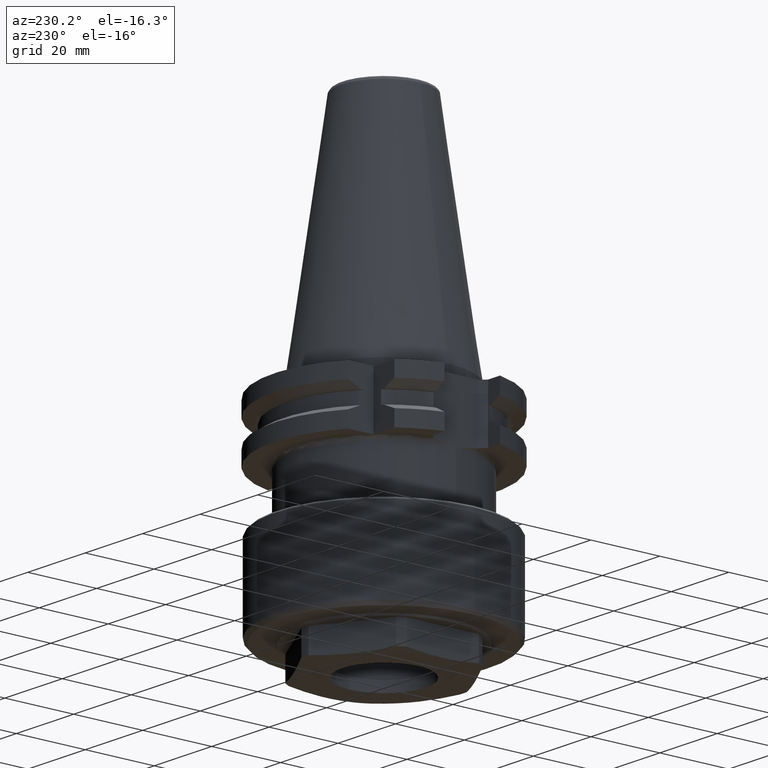
[diagram: clean part render]
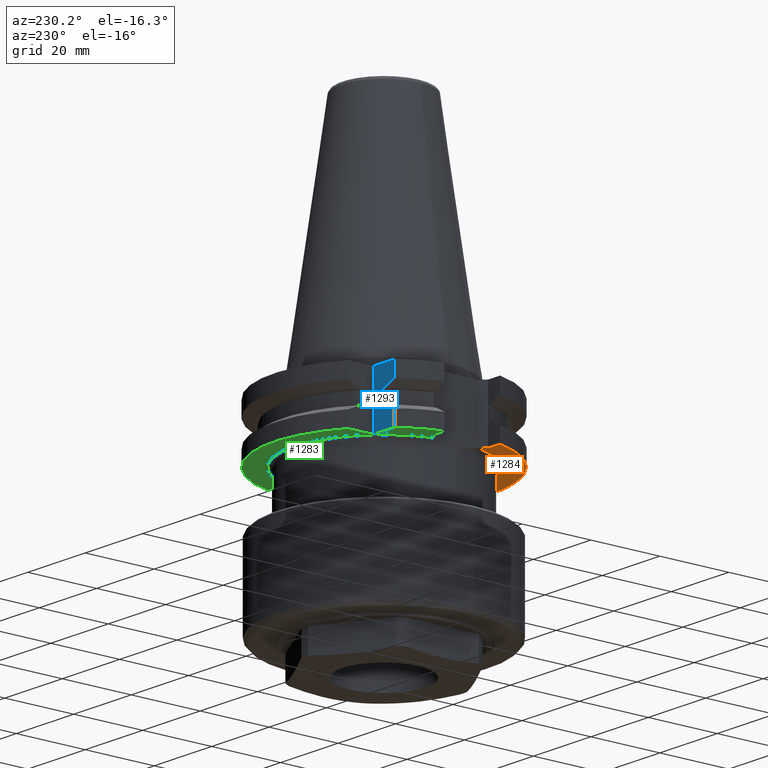
[diagram: same view with three faces highlighted in distinct colors, each labeled with its STEP entity id]
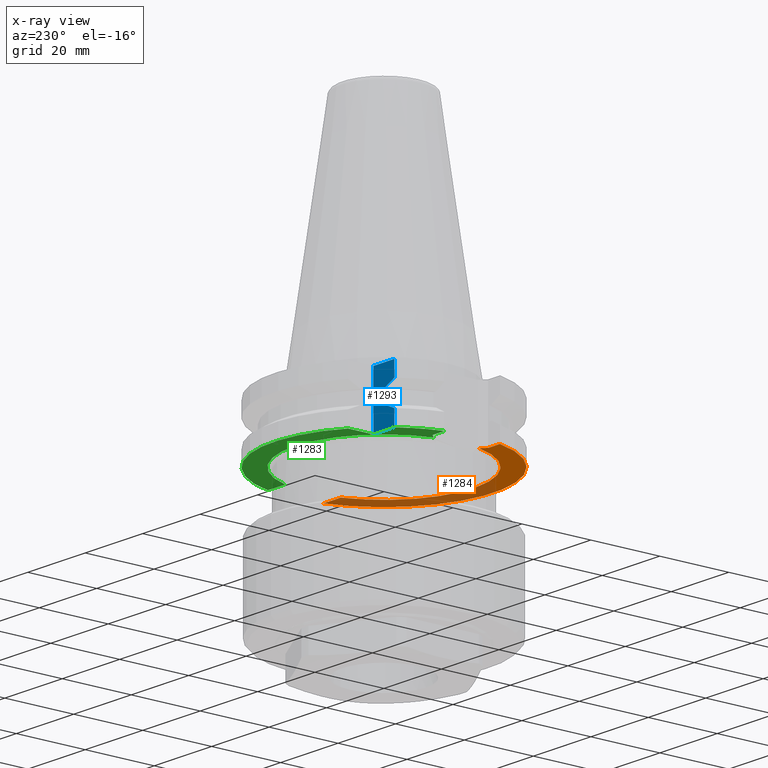
[diagram: x-ray of the same camera — body ghosted, the three highlighted faces saturated]
A machine part, auxiliary view with three faces highlighted in distinct colors.
The next image is the same camera in x-ray (body ghosted, the three faces saturated) — at least one of them is partly hidden behind the body in this view.
Their STEP definitions:

[orange] entity #1284 — the highlighted planar face has unit normal (0, 0, -1).
#100=LINE('',#2267,#183);
#101=LINE('',#2272,#184);
#102=LINE('',#2273,#185);
#183=VECTOR('',#1708,1000.);
#184=VECTOR('',#1711,1000.);
#185=VECTOR('',#1712,1000.);
#457=ORIENTED_EDGE('',*,*,#755,.T.);
#458=ORIENTED_EDGE('',*,*,#756,.T.);
#459=ORIENTED_EDGE('',*,*,#757,.T.);
#460=ORIENTED_EDGE('',*,*,#706,.T.);
#461=ORIENTED_EDGE('',*,*,#758,.T.);
#706=EDGE_CURVE('',#870,#871,#973,.T.);
#755=EDGE_CURVE('',#906,#907,#100,.T.);
#756=EDGE_CURVE('',#907,#908,#991,.F.);
#757=EDGE_CURVE('',#908,#870,#101,.T.);
#758=EDGE_CURVE('',#871,#906,#102,.T.);
#870=VERTEX_POINT('',#2144);
#871=VERTEX_POINT('',#2145);
#906=VERTEX_POINT('',#2268);
#907=VERTEX_POINT('',#2269);
#908=VERTEX_POINT('',#2271);
#973=CIRCLE('',#1390,31.775);
#991=CIRCLE('',#1423,26.);
#1062=EDGE_LOOP('',(#457,#458,#459,#460,#461));
#1161=FACE_BOUND('',#1062,.T.);
#1222=PLANE('',#1422);
#1284=ADVANCED_FACE('',(#1161),#1222,.T.);
#1390=AXIS2_PLACEMENT_3D('',#2143,#1619,#1620);
#1422=AXIS2_PLACEMENT_3D('',#2266,#1706,#1707);
#1423=AXIS2_PLACEMENT_3D('',#2270,#1709,#1710);
#1619=DIRECTION('',(0.,2.22044604925031E-16,-1.));
#1620=DIRECTION('',(-1.,0.,0.));
#1706=DIRECTION('',(0.,2.22044604925031E-16,-1.));
#1707=DIRECTION('',(-1.,0.,0.));
#1708=DIRECTION('',(0.707106781186548,0.707106781186547,1.17756934401283E-16));
#1709=DIRECTION('',(0.,2.22044604925031E-16,-1.));
#1710=DIRECTION('',(-1.,0.,0.));
#1711=DIRECTION('',(1.,-4.06762746091115E-15,-6.77396049405168E-31));
#1712=DIRECTION('',(1.,3.1105386465791E-15,5.18008743662773E-31));
#2143=CARTESIAN_POINT('',(0.,4.2410519540681E-15,-19.1));
#2144=CARTESIAN_POINT('',(30.7383819515602,-8.05000000000001,-19.1));
#2145=CARTESIAN_POINT('',(-30.7383819515602,-8.05000000000001,-19.1));
#2266=CARTESIAN_POINT('',(-31.775,4.2410519540681E-15,-19.1));
#2267=CARTESIAN_POINT('',(-25.1625,-6.6125,-19.1));
#2268=CARTESIAN_POINT('',(-26.6,-8.05,-19.1));
#2269=CARTESIAN_POINT('',(-25.1487007342333,-6.59870073423333,-19.1));
#2270=CARTESIAN_POINT('',(0.,4.2410519540681E-15,-19.1));
#2271=CARTESIAN_POINT('',(24.7224088632156,-8.04999999999998,-19.1));
#2272=CARTESIAN_POINT('',(-31.775,-8.04999999999975,-19.1));
#2273=CARTESIAN_POINT('',(-31.775,-8.05000000000001,-19.1));

[blue] entity #1293 — the highlighted planar face has unit normal (0, -1, -0).
#79=LINE('',#2164,#162);
#81=LINE('',#2170,#164);
#83=LINE('',#2176,#166);
#85=LINE('',#2194,#168);
#98=LINE('',#2263,#181);
#117=LINE('',#2333,#200);
#118=LINE('',#2337,#201);
#119=LINE('',#2339,#202);
#162=VECTOR('',#1631,1000.);
#164=VECTOR('',#1637,1000.);
#166=VECTOR('',#1643,1000.);
#168=VECTOR('',#1653,1000.);
#181=VECTOR('',#1704,1000.);
#200=VECTOR('',#1745,1000.);
#201=VECTOR('',#1750,1000.);
#202=VECTOR('',#1751,1000.);
#232=B_SPLINE_CURVE_WITH_KNOTS('',3,(#2149,#2150,#2151,#2152),
 .UNSPECIFIED.,.F.,.F.,(4,4),(0.0216766078993798,0.025639695157619),
 .UNSPECIFIED.);
#234=B_SPLINE_CURVE_WITH_KNOTS('',3,(#2182,#2183,#2184,#2185),
 .UNSPECIFIED.,.F.,.F.,(4,4),(0.0197608483020756,0.0237521823139405),
 .UNSPECIFIED.);
#517=ORIENTED_EDGE('',*,*,#753,.T.);
#518=ORIENTED_EDGE('',*,*,#725,.T.);
#519=ORIENTED_EDGE('',*,*,#722,.T.);
#520=ORIENTED_EDGE('',*,*,#719,.T.);
#521=ORIENTED_EDGE('',*,*,#716,.T.);
#522=ORIENTED_EDGE('',*,*,#713,.T.);
#523=ORIENTED_EDGE('',*,*,#709,.T.);
#524=ORIENTED_EDGE('',*,*,#780,.T.);
#525=ORIENTED_EDGE('',*,*,#782,.T.);
#526=ORIENTED_EDGE('',*,*,#783,.F.);
#709=EDGE_CURVE('',#872,#873,#232,.T.);
#713=EDGE_CURVE('',#876,#872,#79,.T.);
#716=EDGE_CURVE('',#878,#876,#81,.F.);
#719=EDGE_CURVE('',#880,#878,#83,.T.);
#722=EDGE_CURVE('',#882,#880,#234,.T.);
#725=EDGE_CURVE('',#884,#882,#85,.F.);
#753=EDGE_CURVE('',#905,#884,#98,.T.);
#780=EDGE_CURVE('',#873,#921,#117,.F.);
#782=EDGE_CURVE('',#921,#922,#118,.T.);
#783=EDGE_CURVE('',#905,#922,#119,.T.);
#872=VERTEX_POINT('',#2153);
#873=VERTEX_POINT('',#2154);
#876=VERTEX_POINT('',#2165);
#878=VERTEX_POINT('',#2171);
#880=VERTEX_POINT('',#2177);
#882=VERTEX_POINT('',#2186);
#884=VERTEX_POINT('',#2195);
#905=VERTEX_POINT('',#2264);
#921=VERTEX_POINT('',#2334);
#922=VERTEX_POINT('',#2338);
#1071=EDGE_LOOP('',(#517,#518,#519,#520,#521,#522,#523,#524,#525,#526));
#1170=FACE_BOUND('',#1071,.T.);
#1229=PLANE('',#1434);
#1293=ADVANCED_FACE('',(#1170),#1229,.F.);
#1434=AXIS2_PLACEMENT_3D('',#2336,#1748,#1749);
#1631=DIRECTION('',(-1.,-1.92822466770596E-16,-3.21113913410603E-32));
#1637=DIRECTION('',(0.,2.22044604925031E-16,-1.));
#1643=DIRECTION('',(1.,1.92822466770596E-16,3.21113913410603E-32));
#1653=DIRECTION('',(0.,2.22044604925031E-16,-1.));
#1704=DIRECTION('',(-1.,-1.92822466770596E-16,-3.21113913410603E-32));
#1745=DIRECTION('',(0.,2.22044604925031E-16,-1.));
#1748=DIRECTION('',(1.92822466770596E-16,-1.,-1.66533453693773E-16));
#1749=DIRECTION('',(1.,1.92822466770596E-16,3.21113913410603E-32));
#1750=DIRECTION('',(1.,1.92822466770596E-16,3.21113913410603E-32));
#1751=DIRECTION('',(0.,-2.22044604925031E-16,1.));
#2149=CARTESIAN_POINT('',(-22.2023704733857,18.5,-9.22375891365621));
#2150=CARTESIAN_POINT('',(-23.4191241997804,18.5,-8.68406515747049));
#2151=CARTESIAN_POINT('',(-24.6294766346888,18.5,-8.12918417082906));
#2152=CARTESIAN_POINT('',(-25.8340981069593,18.5,-7.56372960121354));
#2153=CARTESIAN_POINT('',(-22.2023704733857,18.5,-9.22375891365622));
#2154=CARTESIAN_POINT('',(-25.8340981069593,18.5,-7.56372960121354));
#2164=CARTESIAN_POINT('',(-28.8997448887957,18.5,-9.22375891365622));
#2165=CARTESIAN_POINT('',(-21.1840889584612,18.5,-9.22375891365622));
#2170=CARTESIAN_POINT('',(-21.1840889584612,18.5,-60.));
#2171=CARTESIAN_POINT('',(-21.1840889584612,18.5,-12.9762410863438));
#2176=CARTESIAN_POINT('',(-28.125,18.5,-12.9762410863438));
#2177=CARTESIAN_POINT('',(-22.2023704733857,18.5,-12.9762410863438));
#2182=CARTESIAN_POINT('',(-25.8340981069593,18.5,-14.6362703987865));
#2183=CARTESIAN_POINT('',(-24.6293550045605,18.5,-14.0707587354586));
#2184=CARTESIAN_POINT('',(-23.4183807985834,18.5,-13.5156051053151));
#2185=CARTESIAN_POINT('',(-22.2023704733857,18.5,-12.9762410863438));
#2186=CARTESIAN_POINT('',(-25.8340981069593,18.5,-14.6362703987865));
#2194=CARTESIAN_POINT('',(-25.8340981069593,18.5,-60.));
#2195=CARTESIAN_POINT('',(-25.8340981069593,18.5,-19.1));
#2263=CARTESIAN_POINT('',(-31.775,18.5,-19.1));
#2264=CARTESIAN_POINT('',(-18.5,18.5,-19.1));
#2333=CARTESIAN_POINT('',(-25.8340981069593,18.5,-60.));
#2334=CARTESIAN_POINT('',(-25.8340981069593,18.5,-3.2));
#2336=CARTESIAN_POINT('',(-72.4788803150402,18.5,-163.882131697476));
#2337=CARTESIAN_POINT('',(-22.225,18.5,-3.2));
#2338=CARTESIAN_POINT('',(-18.5,18.5,-3.20000000000001));
#2339=CARTESIAN_POINT('',(-18.5,18.5,-163.882131697476));

[green] entity #1283 — the highlighted planar face has unit normal (0, 0, -1).
#95=LINE('',#2256,#178);
#96=LINE('',#2260,#179);
#97=LINE('',#2262,#180);
#98=LINE('',#2263,#181);
#99=LINE('',#2265,#182);
#178=VECTOR('',#1699,1000.);
#179=VECTOR('',#1702,1000.);
#180=VECTOR('',#1703,1000.);
#181=VECTOR('',#1704,1000.);
#182=VECTOR('',#1705,1000.);
#449=ORIENTED_EDGE('',*,*,#749,.T.);
#450=ORIENTED_EDGE('',*,*,#750,.T.);
#451=ORIENTED_EDGE('',*,*,#751,.T.);
#452=ORIENTED_EDGE('',*,*,#752,.T.);
#453=ORIENTED_EDGE('',*,*,#726,.T.);
#454=ORIENTED_EDGE('',*,*,#753,.F.);
#455=ORIENTED_EDGE('',*,*,#754,.F.);
#456=ORIENTED_EDGE('',*,*,#746,.T.);
#726=EDGE_CURVE('',#885,#884,#980,.T.);
#746=EDGE_CURVE('',#898,#899,#987,.T.);
#749=EDGE_CURVE('',#899,#902,#95,.T.);
#750=EDGE_CURVE('',#902,#903,#990,.F.);
#751=EDGE_CURVE('',#903,#904,#96,.T.);
#752=EDGE_CURVE('',#904,#885,#97,.T.);
#753=EDGE_CURVE('',#905,#884,#98,.T.);
#754=EDGE_CURVE('',#898,#905,#99,.T.);
#884=VERTEX_POINT('',#2195);
#885=VERTEX_POINT('',#2197);
#898=VERTEX_POINT('',#2246);
#899=VERTEX_POINT('',#2248);
#902=VERTEX_POINT('',#2257);
#903=VERTEX_POINT('',#2259);
#904=VERTEX_POINT('',#2261);
#905=VERTEX_POINT('',#2264);
#980=CIRCLE('',#1403,31.775);
#987=CIRCLE('',#1416,31.775);
#990=CIRCLE('',#1421,26.);
#1061=EDGE_LOOP('',(#449,#450,#451,#452,#453,#454,#455,#456));
#1160=FACE_BOUND('',#1061,.T.);
#1221=PLANE('',#1420);
#1283=ADVANCED_FACE('',(#1160),#1221,.T.);
#1403=AXIS2_PLACEMENT_3D('',#2196,#1654,#1655);
#1416=AXIS2_PLACEMENT_3D('',#2249,#1689,#1690);
#1420=AXIS2_PLACEMENT_3D('',#2255,#1697,#1698);
#1421=AXIS2_PLACEMENT_3D('',#2258,#1700,#1701);
#1654=DIRECTION('',(0.,2.22044604925031E-16,-1.));
#1655=DIRECTION('',(-1.,0.,0.));
#1689=DIRECTION('',(0.,2.22044604925031E-16,-1.));
#1690=DIRECTION('',(-1.,0.,0.));
#1697=DIRECTION('',(0.,2.22044604925031E-16,-1.));
#1698=DIRECTION('',(-1.,0.,0.));
#1699=DIRECTION('',(-1.,1.91417762866407E-15,3.18774611484785E-31));
#1700=DIRECTION('',(0.,2.22044604925031E-16,-1.));
#1701=DIRECTION('',(-1.,0.,0.));
#1702=DIRECTION('',(-0.707106781186548,0.707106781186547,1.17756934401283E-16));
#1703=DIRECTION('',(-1.,-2.51235813762158E-15,-4.18391677573779E-31));
#1704=DIRECTION('',(-1.,-1.92822466770596E-16,-3.21113913410603E-32));
#1705=DIRECTION('',(0.,-1.,-1.66533453693773E-16));
#2195=CARTESIAN_POINT('',(-25.8340981069593,18.5,-19.1));
#2196=CARTESIAN_POINT('',(0.,4.2410519540681E-15,-19.1));
#2197=CARTESIAN_POINT('',(-30.7383819515602,8.04999999999999,-19.1));
#2246=CARTESIAN_POINT('',(-18.5,25.8340981069593,-19.1));
#2248=CARTESIAN_POINT('',(30.7383819515602,8.04999999999998,-19.1));
#2249=CARTESIAN_POINT('',(0.,4.2410519540681E-15,-19.1));
#2255=CARTESIAN_POINT('',(-31.775,4.2410519540681E-15,-19.1));
#2256=CARTESIAN_POINT('',(-31.775,8.0500000000001,-19.1));
#2257=CARTESIAN_POINT('',(24.7224088632156,8.04999999999999,-19.1));
#2258=CARTESIAN_POINT('',(0.,4.2410519540681E-15,-19.1));
#2259=CARTESIAN_POINT('',(-25.1487007342333,6.59870073423334,-19.1));
#2260=CARTESIAN_POINT('',(-25.1625,6.6125,-19.1));
#2261=CARTESIAN_POINT('',(-26.6,8.05,-19.1));
#2262=CARTESIAN_POINT('',(-31.775,8.04999999999999,-19.1));
#2263=CARTESIAN_POINT('',(-31.775,18.5,-19.1));
#2264=CARTESIAN_POINT('',(-18.5,18.5,-19.1));
#2265=CARTESIAN_POINT('',(-18.5,4.2410519540681E-15,-19.1));